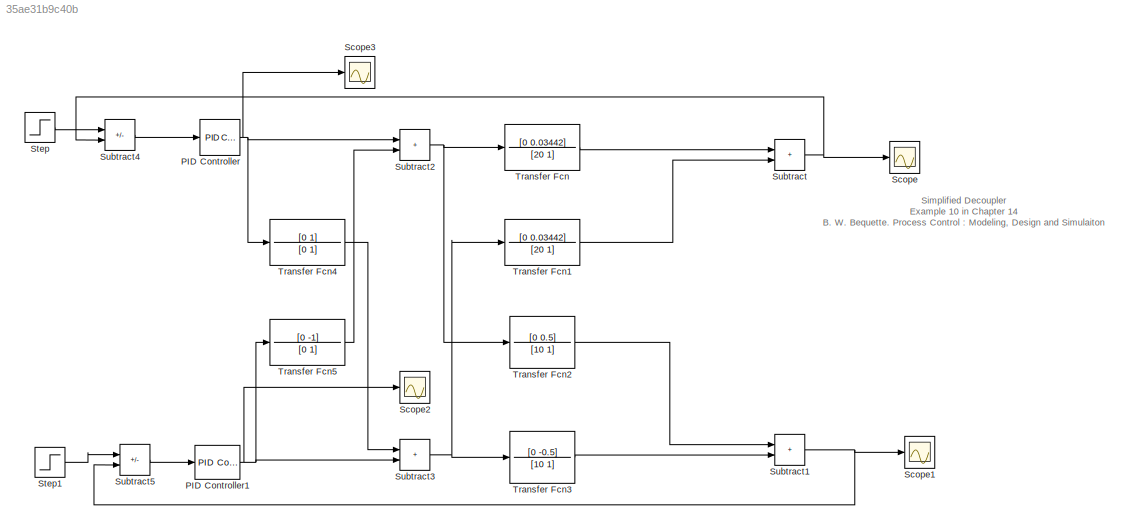
MODEL slx_35ae31b9c40b
KIND model
CONFIG AbsTol = auto
CONFIG EnableMultiTasking = off
CONFIG FixedStep = auto
CONFIG MaxStep = auto
CONFIG MinStep = auto
CONFIG RelTol = 1e-3
CONFIG SampleTimeConstraint = Unconstrained
CONFIG SolverName = VariableStepAuto
CONFIG StartTime = 0.0
CONFIG StopTime = 100
BLOCK [Reference] PID Controller  REF=slpidlib/PID Controller
  Ports = [1, 1]
  SourceBlock = slpidlib/PID Controller
  SourceProductBaseCode = SL
  SourceType = PID 1dof
BLOCK [Reference] PID Controller1  REF=slpidlib/PID Controller
  Ports = [1, 1]
  SourceBlock = slpidlib/PID Controller
  SourceProductBaseCode = SL
  SourceType = PID 1dof
BLOCK [Scope] Scope
  Floating = off
  NumInputPorts = 1
  Ports = [1]
  ScopeSpecificationString = Simulink.scopes.TimeScopeBlockCfg('CurrentConfiguration', extmgr.ConfigurationSet(extmgr.Configuration('Core','General UI',true),extmgr.Configuration('Core','Source UI',true),extmgr.Configuration('Sources','WiredSimulink',true),extmgr.Configuration('Visuals','Time Domain',true,'SerializedDisplays',{struct('MinYLimReal','-0.13478','MaxYLimReal','1.21298','YLabelReal','','MinYLimMag','0.00000','MaxY...<+1384ch>
BLOCK [Scope] Scope1
  Floating = off
  NumInputPorts = 1
  Ports = [1]
  ScopeSpecificationString = Simulink.scopes.TimeScopeBlockCfg('CurrentConfiguration', extmgr.ConfigurationSet(extmgr.Configuration('Core','General UI',true),extmgr.Configuration('Core','Source UI',true),extmgr.Configuration('Sources','WiredSimulink',true,'DataLoggingVariableName','ScopeData1'),extmgr.Configuration('Visuals','Time Domain',true,'SerializedDisplays',{struct('MinYLimReal','-0.13169','MaxYLimReal','1.18521','YLab...<+1423ch>
BLOCK [Scope] Scope2
  Floating = off
  NumInputPorts = 1
  Ports = [1]
  ScopeSpecificationString = Simulink.scopes.TimeScopeBlockCfg('CurrentConfiguration', extmgr.ConfigurationSet(extmgr.Configuration('Core','General UI',true),extmgr.Configuration('Core','Source UI',true),extmgr.Configuration('Sources','WiredSimulink',true,'DataLoggingVariableName','ScopeData2'),extmgr.Configuration('Visuals','Time Domain',true,'SerializedDisplays',{struct('MinYLimReal','-1.38054','MaxYLimReal','0.15339','YLab...<+1404ch>
BLOCK [Scope] Scope3
  Floating = off
  NumInputPorts = 1
  Ports = [1]
  ScopeSpecificationString = Simulink.scopes.TimeScopeBlockCfg('CurrentConfiguration', extmgr.ConfigurationSet(extmgr.Configuration('Core','General UI',true),extmgr.Configuration('Core','Source UI',true),extmgr.Configuration('Sources','WiredSimulink',true,'DataLoggingVariableName','ScopeData3'),extmgr.Configuration('Visuals','Time Domain',true,'SerializedDisplays',{struct('MinYLimReal','-3.29169','MaxYLimReal','29.62521','YLa...<+1407ch>
BLOCK [Step] Step
  SampleTime = 0
BLOCK [Step] Step1
  SampleTime = 0
BLOCK [Sum] Subtract
  IconShape = rectangular
  Ports = [2, 1]
BLOCK [Sum] Subtract1
  IconShape = rectangular
  Ports = [2, 1]
BLOCK [Sum] Subtract2
  IconShape = rectangular
  Ports = [2, 1]
BLOCK [Sum] Subtract3
  IconShape = rectangular
  Ports = [2, 1]
BLOCK [Sum] Subtract4
  IconShape = rectangular
  Inputs = +-
  Ports = [2, 1]
BLOCK [Sum] Subtract5
  IconShape = rectangular
  Inputs = +-
  Ports = [2, 1]
BLOCK [TransferFcn] Transfer Fcn
  Denominator = [20 1]
  Numerator = [0 0.03442]
BLOCK [TransferFcn] Transfer Fcn1
  Denominator = [20 1]
  Numerator = [0 0.03442]
BLOCK [TransferFcn] Transfer Fcn2
  Denominator = [10 1]
  Numerator = [0 0.5]
BLOCK [TransferFcn] Transfer Fcn3
  Denominator = [10 1]
  Numerator = [0 -0.5]
BLOCK [TransferFcn] Transfer Fcn4
  Denominator = [0 1]
  Numerator = [0 1]
BLOCK [TransferFcn] Transfer Fcn5
  Denominator = [0 1]
  Numerator = [0 -1]
ANNOTATION (root): Simplified Decoupler Example 10 in Chapter 14 B. W. Bequette. Process Control : Modeling, Design and Simulaiton
NET PID Controller1:1 -> Scope2:1, Subtract3:2, Transfer Fcn5:1
NET PID Controller:1 -> Scope3:1, Subtract2:1, Transfer Fcn4:1
LINE Step1:1 -> Subtract5:1
LINE Step:1 -> Subtract4:1
NET Subtract1:1 -> Scope1:1, Subtract5:2
NET Subtract2:1 -> Transfer Fcn2:1, Transfer Fcn:1
NET Subtract3:1 -> Transfer Fcn1:1, Transfer Fcn3:1
LINE Subtract4:1 -> PID Controller:1
LINE Subtract5:1 -> PID Controller1:1
NET Subtract:1 -> Scope:1, Subtract4:2
LINE Transfer Fcn1:1 -> Subtract:2
LINE Transfer Fcn2:1 -> Subtract1:1
LINE Transfer Fcn3:1 -> Subtract1:2
LINE Transfer Fcn4:1 -> Subtract3:1
LINE Transfer Fcn5:1 -> Subtract2:2
LINE Transfer Fcn:1 -> Subtract:1
note: NET lines group one-source signal fan-out (src -> all destinations, sorted); 1:1 wires keep LINE
